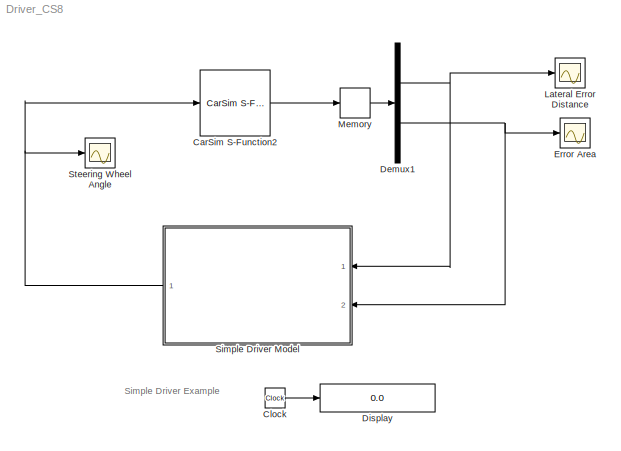
MODEL Driver_CS8
KIND model
BLOCK [Reference] CarSim S-Function2  REF=Solver_SF/CarSim S-Function2
  AttributesFormatString = Vehicle Code: %<VehicleCode>
  Ports = [1, 1]
  Priority = 1
  SourceBlock = Solver_SF/CarSim S-Function2
  SourceType = Vehicle math model library
  VehicleCode = ???
BLOCK [Clock] Clock
  Decimation = 10
BLOCK [Demux] Demux1
  Outputs = [5 5]
  Ports = [1, 2]
BLOCK [Display] Display
  Decimation = 100
  Format = bank
  Lockdown = off
  Ports = [1]
BLOCK [Scope] Error Area
  DataFormat = Array
  Decimation = 10
  Floating = off
  LimitDataPoints = off
  NumInputPorts = 1
  Ports = [1]
  TickLabels = on
  TimeRange = 30
  YMax = 6.525423728813561
  YMin = -6.864406779661017
  ZoomMode = yonly
BLOCK [Scope] Lateral Error Distance
  DataFormat = Array
  Decimation = 10
  Floating = off
  LimitDataPoints = off
  NumInputPorts = 1
  Ports = [1]
  TickLabels = on
  TimeRange = 30
  YMax = 1.308411214953271
  YMin = -1.196261682242991
  ZoomMode = yonly
BLOCK [Memory] Memory
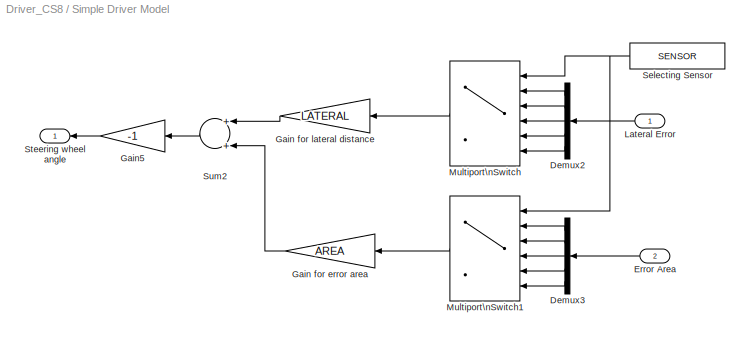
BLOCK [SubSystem] Simple Driver Model
  FunctionWithSeparateData = off
  MaskCallbackString = ||
  MaskEnableString = on,on,on
  MaskHideContents = off
  MaskIconFrame = on
  MaskIconOpaque = on
  MaskIconRotate = none
  MaskIconUnits = autoscale
  MaskPromptString = Selected Sensor|Gain of Area Error|Gain of Lateral Error
  MaskStyleString = edit,edit,edit
  MaskToolTipString = on,on,on
  MaskTunableValueString = on,on,on
  MaskValueString = 3|10|5
  MaskVariables = SENSOR=@1;AREA=@2;LATERAL=@3;
  MaskVisibilityString = on,on,on
  MinAlgLoopOccurrences = off
  Ports = [2, 1]
  PropExecContextOutsideSubsystem = off
  RTWSystemCode = Auto
BLOCK [Demux] Simple Driver Model/Demux2
  Outputs = 5
  Ports = [1, 5]
BLOCK [Demux] Simple Driver Model/Demux3
  Outputs = 5
  Ports = [1, 5]
BLOCK [Inport] Simple Driver Model/Error Area
  IconDisplay = Port number
  OutDataType = sfix(16)
  OutScaling = 2^0
  Port = 2
BLOCK [Gain] Simple Driver Model/Gain for error area
  Gain = AREA
  OutDataType = sfix(16)
  OutScaling = 2^0
  ParameterDataType = sfix(16)
  ParameterScaling = 2^0
BLOCK [Gain] Simple Driver Model/Gain for lateral distance
  Gain = LATERAL
  OutDataType = sfix(16)
  OutScaling = 2^0
  ParameterDataType = sfix(16)
  ParameterScaling = 2^0
BLOCK [Gain] Simple Driver Model/Gain5
  Gain = -1
  OutDataType = sfix(16)
  OutScaling = 2^0
  ParameterDataType = sfix(16)
  ParameterScaling = 2^0
BLOCK [Inport] Simple Driver Model/Lateral Error
  IconDisplay = Port number
  OutDataType = sfix(16)
  OutScaling = 2^0
BLOCK [MultiPortSwitch] Simple Driver Model/Multiport\nSwitch
  Inputs = 5
  Ports = [6, 1]
BLOCK [MultiPortSwitch] Simple Driver Model/Multiport\nSwitch1
  Inputs = 5
  Ports = [6, 1]
BLOCK [Constant] Simple Driver Model/Selecting Sensor
  OutDataType = sfix(16)
  OutScaling = 2^0
  Value = SENSOR
BLOCK [Outport] Simple Driver Model/Steering wheel angle
  IconDisplay = Port number
  InitialOutput = 0
BLOCK [Sum] Simple Driver Model/Sum2
  OutDataType = sfix(16)
  OutScaling = 2^0
  Ports = [2, 1]
BLOCK [Scope] Steering Wheel Angle
  DataFormat = Array
  Decimation = 10
  Floating = off
  LimitDataPoints = off
  NumInputPorts = 1
  Ports = [1]
  TickLabels = on
  TimeRange = 30
  YMax = 50
  YMin = -50
ANNOTATION (root): Simple Driver Example
LINE CarSim S-Function2:1 -> Memory:1
LINE Clock:1 -> Display:1
NET Demux1:1 -> Lateral Error Distance:1, Simple Driver Model:1
NET Demux1:2 -> Error Area:1, Simple Driver Model:2
LINE Memory:1 -> Demux1:1
LINE Simple Driver Model/Demux2:1 -> Simple Driver Model/Multiport\nSwitch:2
LINE Simple Driver Model/Demux2:2 -> Simple Driver Model/Multiport\nSwitch:3
LINE Simple Driver Model/Demux2:3 -> Simple Driver Model/Multiport\nSwitch:4
LINE Simple Driver Model/Demux2:4 -> Simple Driver Model/Multiport\nSwitch:5
LINE Simple Driver Model/Demux2:5 -> Simple Driver Model/Multiport\nSwitch:6
LINE Simple Driver Model/Demux3:1 -> Simple Driver Model/Multiport\nSwitch1:2
LINE Simple Driver Model/Demux3:2 -> Simple Driver Model/Multiport\nSwitch1:3
LINE Simple Driver Model/Demux3:3 -> Simple Driver Model/Multiport\nSwitch1:4
LINE Simple Driver Model/Demux3:4 -> Simple Driver Model/Multiport\nSwitch1:5
LINE Simple Driver Model/Demux3:5 -> Simple Driver Model/Multiport\nSwitch1:6
LINE Simple Driver Model/Error Area:1 -> Simple Driver Model/Demux3:1
LINE Simple Driver Model/Gain for error area:1 -> Simple Driver Model/Sum2:2
LINE Simple Driver Model/Gain for lateral distance:1 -> Simple Driver Model/Sum2:1
LINE Simple Driver Model/Gain5:1 -> Simple Driver Model/Steering wheel angle:1
LINE Simple Driver Model/Lateral Error:1 -> Simple Driver Model/Demux2:1
LINE Simple Driver Model/Multiport\nSwitch1:1 -> Simple Driver Model/Gain for error area:1
LINE Simple Driver Model/Multiport\nSwitch:1 -> Simple Driver Model/Gain for lateral distance:1
NET Simple Driver Model/Selecting Sensor:1 -> Simple Driver Model/Multiport\nSwitch1:1, Simple Driver Model/Multiport\nSwitch:1
LINE Simple Driver Model/Sum2:1 -> Simple Driver Model/Gain5:1
NET Simple Driver Model:1 -> CarSim S-Function2:1, Steering Wheel Angle:1
note: NET lines group one-source signal fan-out (src -> all destinations, sorted); 1:1 wires keep LINE
